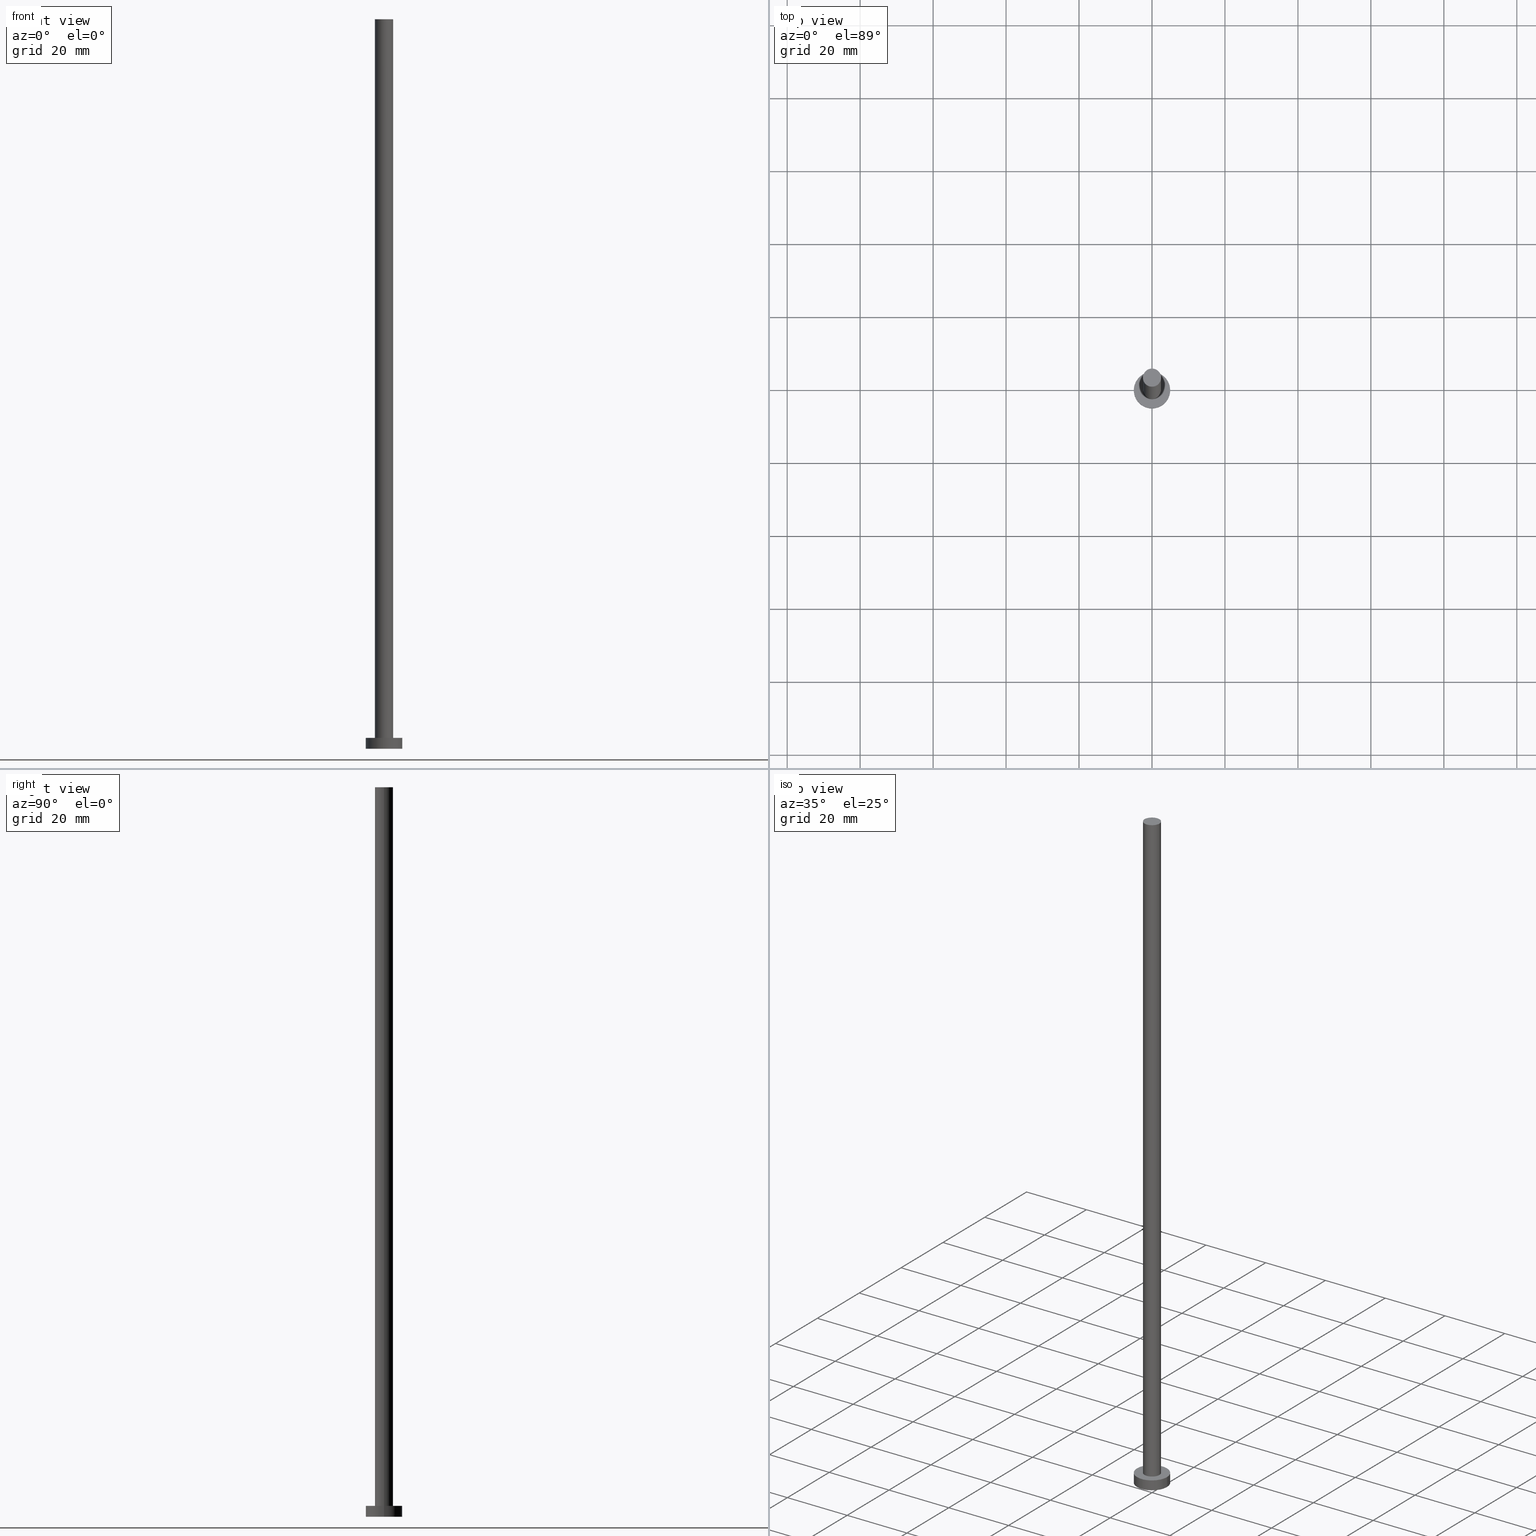
[diagram: canonical four-view strip — front | top / right | iso, engineering-drawing reading convention]
A machine part, canonical four-view strip (front | top / right | iso — engineering-drawing reading convention). The complete STEP part file that produces these views, byte-faithful:
ISO-10303-21;
HEADER;
FILE_DESCRIPTION (( 'STEP AP203' ),
    '1' );
FILE_NAME ('8b84.STEP',
    '2023-02-13T13:26:22',
    ( '' ),
    ( '' ),
    'SwSTEP 2.0',
    'SolidWorks 2019',
    '' );
FILE_SCHEMA (( 'CONFIG_CONTROL_DESIGN' ));
ENDSEC;

DATA;
#1 = DIRECTION ( 'NONE',  ( 0.000000000000000000, 0.000000000000000000, 1.000000000000000000 ) ) ;
#2 = CARTESIAN_POINT ( 'NONE',  ( 0.000000000000000000, 0.000000000000000000, 200.0000000000000000 ) ) ;
#3 = ORIENTED_EDGE ( 'NONE', *, *, #58, .F. ) ;
#4 = CC_DESIGN_PERSON_AND_ORGANIZATION_ASSIGNMENT ( #170, #156, ( #30 ) ) ;
#5 = EDGE_CURVE ( 'NONE', #71, #241, #124, .T. ) ;
#6 = PLANE ( 'NONE',  #17 ) ;
#7 = CARTESIAN_POINT ( 'NONE',  ( 0.000000000000000000, 0.000000000000000000, 0.000000000000000000 ) ) ;
#8 = FACE_OUTER_BOUND ( 'NONE', #15, .T. ) ;
#9 = PERSON_AND_ORGANIZATION ( #155, #232 ) ;
#10 = CIRCLE ( 'NONE', #78, 5.000000000000000000 ) ;
#11 = CARTESIAN_POINT ( 'NONE',  ( 5.000000000000000000, 6.123233995736766282E-16, 3.000000000000000000 ) ) ;
#12 = CIRCLE ( 'NONE', #203, 2.500000000000000000 ) ;
#13 = DATE_AND_TIME ( #186, #159 ) ;
#14 = DIRECTION ( 'NONE',  ( -0.000000000000000000, -0.000000000000000000, -1.000000000000000000 ) ) ;
#15 = EDGE_LOOP ( 'NONE', ( #123, #255, #179, #195 ) ) ;
#16 = EDGE_CURVE ( 'NONE', #71, #236, #93, .T. ) ;
#17 = AXIS2_PLACEMENT_3D ( 'NONE', #31, #48, #53 ) ;
#18 = VERTEX_POINT ( 'NONE', #153 ) ;
#19 = APPLICATION_CONTEXT ( 'configuration controlled 3d designs of mechanical parts and assemblies' ) ;
#20 = VERTEX_POINT ( 'NONE', #185 ) ;
#21 = ORIENTED_EDGE ( 'NONE', *, *, #5, .F. ) ;
#22 = PERSON_AND_ORGANIZATION ( #155, #232 ) ;
#23 = PRODUCT_RELATED_PRODUCT_CATEGORY ( 'detail', '', ( #250 ) ) ;
#24 = CARTESIAN_POINT ( 'NONE',  ( 2.500000000000000000, 3.061616997868383141E-16, 200.0000000000000000 ) ) ;
#25 = ORIENTED_EDGE ( 'NONE', *, *, #214, .T. ) ;
#26 = PERSON_AND_ORGANIZATION_ROLE ( 'classification_officer' ) ;
#27 = DIRECTION ( 'NONE',  ( 1.000000000000000000, 0.000000000000000000, 0.000000000000000000 ) ) ;
#28 = CALENDAR_DATE ( 2023, 13, 2 ) ;
#29 = CLOSED_SHELL ( 'NONE', ( #61, #148, #100, #230, #38, #37, #189 ) ) ;
#30 = PRODUCT_DEFINITION_FORMATION_WITH_SPECIFIED_SOURCE ( 'LIBOVOLN�', '', #250, .NOT_KNOWN. ) ;
#31 = CARTESIAN_POINT ( 'NONE',  ( 0.000000000000000000, 0.000000000000000000, 0.000000000000000000 ) ) ;
#32 = PERSON_AND_ORGANIZATION ( #155, #232 ) ;
#33 = CARTESIAN_POINT ( 'NONE',  ( 0.000000000000000000, 0.000000000000000000, 200.0000000000000000 ) ) ;
#34 = APPROVAL_DATE_TIME ( #206, #198 ) ;
#35 = CARTESIAN_POINT ( 'NONE',  ( 0.000000000000000000, 0.000000000000000000, 3.000000000000000000 ) ) ;
#36 = COORDINATED_UNIVERSAL_TIME_OFFSET ( 1, 0, .AHEAD. ) ;
#37 = ADVANCED_FACE ( 'NONE', ( #67 ), #223, .T. ) ;
#38 = ADVANCED_FACE ( 'NONE', ( #106 ), #6, .F. ) ;
#39 = FACE_OUTER_BOUND ( 'NONE', #81, .T. ) ;
#40 =( NAMED_UNIT ( * ) PLANE_ANGLE_UNIT ( ) SI_UNIT ( $, .RADIAN. ) );
#41 = CARTESIAN_POINT ( 'NONE',  ( 5.000000000000000000, 6.123233995736766282E-16, 3.000000000000000000 ) ) ;
#42 = ORIENTED_EDGE ( 'NONE', *, *, #214, .F. ) ;
#43 = ORIENTED_EDGE ( 'NONE', *, *, #158, .F. ) ;
#44 = DIRECTION ( 'NONE',  ( 1.000000000000000000, 0.000000000000000000, 0.000000000000000000 ) ) ;
#45 = AXIS2_PLACEMENT_3D ( 'NONE', #2, #201, #27 ) ;
#46 = VECTOR ( 'NONE', #14, 1000.000000000000000 ) ;
#47 = EDGE_LOOP ( 'NONE', ( #68, #25 ) ) ;
#48 = DIRECTION ( 'NONE',  ( 0.000000000000000000, 0.000000000000000000, 1.000000000000000000 ) ) ;
#49 = COORDINATED_UNIVERSAL_TIME_OFFSET ( 1, 0, .AHEAD. ) ;
#50 = EDGE_LOOP ( 'NONE', ( #150, #199 ) ) ;
#51 = DIRECTION ( 'NONE',  ( -0.000000000000000000, -0.000000000000000000, -1.000000000000000000 ) ) ;
#52 = DIRECTION ( 'NONE',  ( 0.000000000000000000, 0.000000000000000000, 1.000000000000000000 ) ) ;
#53 = DIRECTION ( 'NONE',  ( 1.000000000000000000, 0.000000000000000000, -0.000000000000000000 ) ) ;
#54 = MANIFOLD_SOLID_BREP ( 'P�idat vysunut�m3', #29 ) ;
#55 = APPROVAL_ROLE ( '' ) ;
#56 = DIRECTION ( 'NONE',  ( 1.000000000000000000, 0.000000000000000000, 0.000000000000000000 ) ) ;
#57 = CC_DESIGN_DATE_AND_TIME_ASSIGNMENT ( #13, #208, ( #62 ) ) ;
#58 = EDGE_CURVE ( 'NONE', #141, #18, #254, .T. ) ;
#59 = VECTOR ( 'NONE', #220, 1000.000000000000000 ) ;
#60 = DATE_AND_TIME ( #209, #147 ) ;
#61 = ADVANCED_FACE ( 'NONE', ( #168 ), #163, .T. ) ;
#62 = PRODUCT_DEFINITION ( 'NEZN�M�', '', #30, #226 ) ;
#63 = PERSON_AND_ORGANIZATION ( #155, #232 ) ;
#64 = CIRCLE ( 'NONE', #213, 2.500000000000000000 ) ;
#65 = VERTEX_POINT ( 'NONE', #126 ) ;
#66 = CC_DESIGN_PERSON_AND_ORGANIZATION_ASSIGNMENT ( #97, #128, ( #250 ) ) ;
#67 = FACE_OUTER_BOUND ( 'NONE', #212, .T. ) ;
#68 = ORIENTED_EDGE ( 'NONE', *, *, #138, .T. ) ;
#69 = CARTESIAN_POINT ( 'NONE',  ( 0.000000000000000000, 0.000000000000000000, 0.000000000000000000 ) ) ;
#70 = CARTESIAN_POINT ( 'NONE',  ( 0.000000000000000000, 0.000000000000000000, 200.0000000000000000 ) ) ;
#71 = VERTEX_POINT ( 'NONE', #77 ) ;
#72 =( LENGTH_UNIT ( ) NAMED_UNIT ( * ) SI_UNIT ( .MILLI., .METRE. ) );
#73 = DIRECTION ( 'NONE',  ( -0.000000000000000000, -0.000000000000000000, -1.000000000000000000 ) ) ;
#74 = CALENDAR_DATE ( 2023, 13, 2 ) ;
#75 = DIRECTION ( 'NONE',  ( -0.000000000000000000, -0.000000000000000000, -1.000000000000000000 ) ) ;
#76 = APPROVAL_DATE_TIME ( #244, #79 ) ;
#77 = CARTESIAN_POINT ( 'NONE',  ( -5.000000000000000000, 0.000000000000000000, 3.000000000000000000 ) ) ;
#78 = AXIS2_PLACEMENT_3D ( 'NONE', #90, #1, #44 ) ;
#79 = APPROVAL ( #224, 'NEUR�EN�' ) ;
#80 = CC_DESIGN_APPROVAL ( #198, ( #30 ) ) ;
#81 = EDGE_LOOP ( 'NONE', ( #85, #143 ) ) ;
#82 = VECTOR ( 'NONE', #184, 1000.000000000000000 ) ;
#83 = LOCAL_TIME ( 14, 26, 22.00000000000000000, #109 ) ;
#84 = EDGE_CURVE ( 'NONE', #127, #141, #176, .T. ) ;
#85 = ORIENTED_EDGE ( 'NONE', *, *, #5, .T. ) ;
#86 = DIRECTION ( 'NONE',  ( 0.000000000000000000, 0.000000000000000000, 1.000000000000000000 ) ) ;
#87 = AXIS2_PLACEMENT_3D ( 'NONE', #94, #190, #99 ) ;
#88 = ORIENTED_EDGE ( 'NONE', *, *, #58, .T. ) ;
#89 = DIRECTION ( 'NONE',  ( -1.000000000000000000, 0.000000000000000000, 0.000000000000000000 ) ) ;
#90 = CARTESIAN_POINT ( 'NONE',  ( 0.000000000000000000, 0.000000000000000000, 3.000000000000000000 ) ) ;
#91 = APPROVAL_ROLE ( '' ) ;
#92 = CYLINDRICAL_SURFACE ( 'NONE', #182, 5.000000000000000000 ) ;
#93 = LINE ( 'NONE', #240, #116 ) ;
#94 = CARTESIAN_POINT ( 'NONE',  ( 0.000000000000000000, 0.000000000000000000, 200.0000000000000000 ) ) ;
#95 = CALENDAR_DATE ( 2023, 13, 2 ) ;
#96 = CC_DESIGN_DATE_AND_TIME_ASSIGNMENT ( #129, #146, ( #194 ) ) ;
#97 = PERSON_AND_ORGANIZATION ( #155, #232 ) ;
#98 = ORIENTED_EDGE ( 'NONE', *, *, #207, .F. ) ;
#99 = DIRECTION ( 'NONE',  ( 1.000000000000000000, 0.000000000000000000, -0.000000000000000000 ) ) ;
#100 = ADVANCED_FACE ( 'NONE', ( #152 ), #92, .T. ) ;
#101 = APPROVAL_PERSON_ORGANIZATION ( #22, #79, #91 ) ;
#102 = ORIENTED_EDGE ( 'NONE', *, *, #158, .T. ) ;
#103 = CIRCLE ( 'NONE', #45, 2.500000000000000000 ) ;
#104 =( GEOMETRIC_REPRESENTATION_CONTEXT ( 3 ) GLOBAL_UNCERTAINTY_ASSIGNED_CONTEXT ( ( #160 ) ) GLOBAL_UNIT_ASSIGNED_CONTEXT ( ( #72, #40, #239 ) ) REPRESENTATION_CONTEXT ( 'NONE', 'WORKASPACE' ) );
#105 = CIRCLE ( 'NONE', #246, 5.000000000000000000 ) ;
#106 = FACE_OUTER_BOUND ( 'NONE', #50, .T. ) ;
#107 = ORIENTED_EDGE ( 'NONE', *, *, #218, .F. ) ;
#108 = CARTESIAN_POINT ( 'NONE',  ( -2.500000000000000000, 0.000000000000000000, 200.0000000000000000 ) ) ;
#109 = COORDINATED_UNIVERSAL_TIME_OFFSET ( 1, 0, .AHEAD. ) ;
#110 = PLANE ( 'NONE',  #87 ) ;
#111 = SHAPE_DEFINITION_REPRESENTATION ( #211, #139 ) ;
#112 = EDGE_CURVE ( 'NONE', #241, #71, #10, .T. ) ;
#113 = PERSON_AND_ORGANIZATION ( #155, #232 ) ;
#114 = AXIS2_PLACEMENT_3D ( 'NONE', #166, #145, #167 ) ;
#115 = LINE ( 'NONE', #11, #46 ) ;
#116 = VECTOR ( 'NONE', #75, 1000.000000000000000 ) ;
#117 = APPROVAL_STATUS ( 'not_yet_approved' ) ;
#118 = CC_DESIGN_PERSON_AND_ORGANIZATION_ASSIGNMENT ( #113, #187, ( #30 ) ) ;
#119 = CARTESIAN_POINT ( 'NONE',  ( 0.000000000000000000, 0.000000000000000000, 3.000000000000000000 ) ) ;
#120 = EDGE_LOOP ( 'NONE', ( #107, #21, #164, #219 ) ) ;
#121 = CARTESIAN_POINT ( 'NONE',  ( 0.000000000000000000, 0.000000000000000000, 0.000000000000000000 ) ) ;
#122 = CARTESIAN_POINT ( 'NONE',  ( 0.000000000000000000, 0.000000000000000000, 3.000000000000000000 ) ) ;
#123 = ORIENTED_EDGE ( 'NONE', *, *, #112, .F. ) ;
#124 = CIRCLE ( 'NONE', #175, 5.000000000000000000 ) ;
#125 = LINE ( 'NONE', #108, #82 ) ;
#126 = CARTESIAN_POINT ( 'NONE',  ( 5.000000000000000000, 6.123233995736766282E-16, 0.000000000000000000 ) ) ;
#127 = VERTEX_POINT ( 'NONE', #178 ) ;
#128 = PERSON_AND_ORGANIZATION_ROLE ( 'design_owner' ) ;
#129 = DATE_AND_TIME ( #95, #83 ) ;
#130 = DIRECTION ( 'NONE',  ( 1.000000000000000000, 0.000000000000000000, 0.000000000000000000 ) ) ;
#131 = COORDINATED_UNIVERSAL_TIME_OFFSET ( 1, 0, .AHEAD. ) ;
#132 = CC_DESIGN_PERSON_AND_ORGANIZATION_ASSIGNMENT ( #63, #142, ( #62 ) ) ;
#133 = COORDINATED_UNIVERSAL_TIME_OFFSET ( 1, 0, .AHEAD. ) ;
#134 = AXIS2_PLACEMENT_3D ( 'NONE', #238, #51, #227 ) ;
#135 = FACE_BOUND ( 'NONE', #215, .T. ) ;
#136 = AXIS2_PLACEMENT_3D ( 'NONE', #69, #222, #237 ) ;
#137 = CC_DESIGN_APPROVAL ( #79, ( #194 ) ) ;
#138 = EDGE_CURVE ( 'NONE', #20, #127, #103, .T. ) ;
#139 = ADVANCED_BREP_SHAPE_REPRESENTATION ( '8b84', ( #54, #136 ), #104 ) ;
#140 = AXIS2_PLACEMENT_3D ( 'NONE', #7, #52, #130 ) ;
#141 = VERTEX_POINT ( 'NONE', #149 ) ;
#142 = PERSON_AND_ORGANIZATION_ROLE ( 'creator' ) ;
#143 = ORIENTED_EDGE ( 'NONE', *, *, #112, .T. ) ;
#144 = DIRECTION ( 'NONE',  ( -0.000000000000000000, -0.000000000000000000, -1.000000000000000000 ) ) ;
#145 = DIRECTION ( 'NONE',  ( 0.000000000000000000, 0.000000000000000000, 1.000000000000000000 ) ) ;
#146 = DATE_TIME_ROLE ( 'classification_date' ) ;
#147 = LOCAL_TIME ( 14, 26, 22.00000000000000000, #36 ) ;
#148 = ADVANCED_FACE ( 'NONE', ( #8 ), #225, .T. ) ;
#149 = CARTESIAN_POINT ( 'NONE',  ( 2.500000000000000000, 3.061616997868383141E-16, 3.000000000000000000 ) ) ;
#150 = ORIENTED_EDGE ( 'NONE', *, *, #177, .F. ) ;
#151 = SECURITY_CLASSIFICATION_LEVEL ( 'unclassified' ) ;
#152 = FACE_OUTER_BOUND ( 'NONE', #120, .T. ) ;
#153 = CARTESIAN_POINT ( 'NONE',  ( -2.500000000000000000, 0.000000000000000000, 3.000000000000000000 ) ) ;
#154 = DIRECTION ( 'NONE',  ( 0.000000000000000000, 0.000000000000000000, 1.000000000000000000 ) ) ;
#155 = PERSON ( 'NEUR�EN�', 'NEUR�EN�', 'NEUR�EN�', ('NEUR�EN�'), ('NEUR�EN�'), ('NEUR�EN�') ) ;
#156 = PERSON_AND_ORGANIZATION_ROLE ( 'design_supplier' ) ;
#157 = DIRECTION ( 'NONE',  ( 0.000000000000000000, 0.000000000000000000, 1.000000000000000000 ) ) ;
#158 = EDGE_CURVE ( 'NONE', #20, #18, #125, .T. ) ;
#159 = LOCAL_TIME ( 14, 26, 22.00000000000000000, #131 ) ;
#160 = UNCERTAINTY_MEASURE_WITH_UNIT (LENGTH_MEASURE( 1.000000000000000082E-05 ), #72, 'distance_accuracy_value', 'NONE');
#161 = PLANE ( 'NONE',  #228 ) ;
#162 = APPROVAL ( #117, 'NEUR�EN�' ) ;
#163 = CYLINDRICAL_SURFACE ( 'NONE', #231, 2.500000000000000000 ) ;
#164 = ORIENTED_EDGE ( 'NONE', *, *, #16, .T. ) ;
#165 = AXIS2_PLACEMENT_3D ( 'NONE', #70, #144, #243 ) ;
#166 = CARTESIAN_POINT ( 'NONE',  ( 0.000000000000000000, 0.000000000000000000, 3.000000000000000000 ) ) ;
#167 = DIRECTION ( 'NONE',  ( 1.000000000000000000, 0.000000000000000000, 0.000000000000000000 ) ) ;
#168 = FACE_OUTER_BOUND ( 'NONE', #217, .T. ) ;
#169 = DIRECTION ( 'NONE',  ( 0.000000000000000000, 0.000000000000000000, 1.000000000000000000 ) ) ;
#170 = PERSON_AND_ORGANIZATION ( #155, #232 ) ;
#171 = DIRECTION ( 'NONE',  ( 1.000000000000000000, 0.000000000000000000, 0.000000000000000000 ) ) ;
#172 = CC_DESIGN_PERSON_AND_ORGANIZATION_ASSIGNMENT ( #32, #26, ( #194 ) ) ;
#173 = CC_DESIGN_APPROVAL ( #162, ( #62 ) ) ;
#174 = APPLICATION_PROTOCOL_DEFINITION ( 'international standard', 'config_control_design', 1994, #253 ) ;
#175 = AXIS2_PLACEMENT_3D ( 'NONE', #122, #86, #205 ) ;
#176 = LINE ( 'NONE', #24, #59 ) ;
#177 = EDGE_CURVE ( 'NONE', #236, #65, #252, .T. ) ;
#178 = CARTESIAN_POINT ( 'NONE',  ( 2.500000000000000000, 3.061616997868383141E-16, 200.0000000000000000 ) ) ;
#179 = ORIENTED_EDGE ( 'NONE', *, *, #251, .T. ) ;
#180 = DIRECTION ( 'NONE',  ( 1.000000000000000000, 0.000000000000000000, 0.000000000000000000 ) ) ;
#181 = ORIENTED_EDGE ( 'NONE', *, *, #84, .F. ) ;
#182 = AXIS2_PLACEMENT_3D ( 'NONE', #242, #73, #89 ) ;
#183 = PERSON_AND_ORGANIZATION ( #155, #232 ) ;
#184 = DIRECTION ( 'NONE',  ( -0.000000000000000000, -0.000000000000000000, -1.000000000000000000 ) ) ;
#185 = CARTESIAN_POINT ( 'NONE',  ( -2.500000000000000000, 0.000000000000000000, 200.0000000000000000 ) ) ;
#186 = CALENDAR_DATE ( 2023, 13, 2 ) ;
#187 = PERSON_AND_ORGANIZATION_ROLE ( 'creator' ) ;
#188 = APPROVAL_PERSON_ORGANIZATION ( #183, #162, #210 ) ;
#189 = ADVANCED_FACE ( 'NONE', ( #202 ), #110, .T. ) ;
#190 = DIRECTION ( 'NONE',  ( 0.000000000000000000, 0.000000000000000000, 1.000000000000000000 ) ) ;
#191 = APPROVAL_DATE_TIME ( #60, #162 ) ;
#192 = CARTESIAN_POINT ( 'NONE',  ( 0.000000000000000000, 0.000000000000000000, 200.0000000000000000 ) ) ;
#193 = DIRECTION ( 'NONE',  ( 1.000000000000000000, 0.000000000000000000, -0.000000000000000000 ) ) ;
#194 = SECURITY_CLASSIFICATION ( '', '', #151 ) ;
#195 = ORIENTED_EDGE ( 'NONE', *, *, #16, .F. ) ;
#196 = MECHANICAL_CONTEXT ( 'NONE', #253, 'mechanical' ) ;
#197 = ORIENTED_EDGE ( 'NONE', *, *, #84, .T. ) ;
#198 = APPROVAL ( #229, 'NEUR�EN�' ) ;
#199 = ORIENTED_EDGE ( 'NONE', *, *, #251, .F. ) ;
#200 = DIRECTION ( 'NONE',  ( -1.000000000000000000, 0.000000000000000000, 0.000000000000000000 ) ) ;
#201 = DIRECTION ( 'NONE',  ( 0.000000000000000000, 0.000000000000000000, 1.000000000000000000 ) ) ;
#202 = FACE_OUTER_BOUND ( 'NONE', #47, .T. ) ;
#203 = AXIS2_PLACEMENT_3D ( 'NONE', #192, #169, #56 ) ;
#204 = LOCAL_TIME ( 14, 26, 22.00000000000000000, #133 ) ;
#205 = DIRECTION ( 'NONE',  ( 1.000000000000000000, 0.000000000000000000, 0.000000000000000000 ) ) ;
#206 = DATE_AND_TIME ( #74, #204 ) ;
#207 = EDGE_CURVE ( 'NONE', #18, #141, #64, .T. ) ;
#208 = DATE_TIME_ROLE ( 'creation_date' ) ;
#209 = CALENDAR_DATE ( 2023, 13, 2 ) ;
#210 = APPROVAL_ROLE ( '' ) ;
#211 = PRODUCT_DEFINITION_SHAPE ( 'NONE', 'NONE',  #62 ) ;
#212 = EDGE_LOOP ( 'NONE', ( #181, #234, #102, #221 ) ) ;
#213 = AXIS2_PLACEMENT_3D ( 'NONE', #35, #157, #171 ) ;
#214 = EDGE_CURVE ( 'NONE', #127, #20, #12, .T. ) ;
#215 = EDGE_LOOP ( 'NONE', ( #98, #3 ) ) ;
#216 = CARTESIAN_POINT ( 'NONE',  ( -5.000000000000000000, 0.000000000000000000, 0.000000000000000000 ) ) ;
#217 = EDGE_LOOP ( 'NONE', ( #42, #197, #88, #43 ) ) ;
#218 = EDGE_CURVE ( 'NONE', #241, #65, #115, .T. ) ;
#219 = ORIENTED_EDGE ( 'NONE', *, *, #177, .T. ) ;
#220 = DIRECTION ( 'NONE',  ( -0.000000000000000000, -0.000000000000000000, -1.000000000000000000 ) ) ;
#221 = ORIENTED_EDGE ( 'NONE', *, *, #207, .T. ) ;
#222 = DIRECTION ( 'NONE',  ( 0.000000000000000000, 0.000000000000000000, 1.000000000000000000 ) ) ;
#223 = CYLINDRICAL_SURFACE ( 'NONE', #165, 2.500000000000000000 ) ;
#224 = APPROVAL_STATUS ( 'not_yet_approved' ) ;
#225 = CYLINDRICAL_SURFACE ( 'NONE', #134, 5.000000000000000000 ) ;
#226 = DESIGN_CONTEXT ( 'detailed design', #19, 'design' ) ;
#227 = DIRECTION ( 'NONE',  ( -1.000000000000000000, 0.000000000000000000, 0.000000000000000000 ) ) ;
#228 = AXIS2_PLACEMENT_3D ( 'NONE', #119, #233, #193 ) ;
#229 = APPROVAL_STATUS ( 'not_yet_approved' ) ;
#230 = ADVANCED_FACE ( 'NONE', ( #135, #39 ), #161, .T. ) ;
#231 = AXIS2_PLACEMENT_3D ( 'NONE', #33, #245, #200 ) ;
#232 = ORGANIZATION ( 'NEUR�EN�', 'NEUR�EN�', '' ) ;
#233 = DIRECTION ( 'NONE',  ( 0.000000000000000000, 0.000000000000000000, 1.000000000000000000 ) ) ;
#234 = ORIENTED_EDGE ( 'NONE', *, *, #138, .F. ) ;
#235 = LOCAL_TIME ( 14, 26, 22.00000000000000000, #49 ) ;
#236 = VERTEX_POINT ( 'NONE', #216 ) ;
#237 = DIRECTION ( 'NONE',  ( 1.000000000000000000, 0.000000000000000000, 0.000000000000000000 ) ) ;
#238 = CARTESIAN_POINT ( 'NONE',  ( 0.000000000000000000, 0.000000000000000000, 3.000000000000000000 ) ) ;
#239 =( NAMED_UNIT ( * ) SI_UNIT ( $, .STERADIAN. ) SOLID_ANGLE_UNIT ( ) );
#240 = CARTESIAN_POINT ( 'NONE',  ( -5.000000000000000000, 0.000000000000000000, 3.000000000000000000 ) ) ;
#241 = VERTEX_POINT ( 'NONE', #41 ) ;
#242 = CARTESIAN_POINT ( 'NONE',  ( 0.000000000000000000, 0.000000000000000000, 3.000000000000000000 ) ) ;
#243 = DIRECTION ( 'NONE',  ( -1.000000000000000000, 0.000000000000000000, 0.000000000000000000 ) ) ;
#244 = DATE_AND_TIME ( #28, #235 ) ;
#245 = DIRECTION ( 'NONE',  ( -0.000000000000000000, -0.000000000000000000, -1.000000000000000000 ) ) ;
#246 = AXIS2_PLACEMENT_3D ( 'NONE', #121, #154, #180 ) ;
#247 = CC_DESIGN_SECURITY_CLASSIFICATION ( #194, ( #30 ) ) ;
#248 = APPLICATION_PROTOCOL_DEFINITION ( 'international standard', 'config_control_design', 1994, #19 ) ;
#249 = APPROVAL_PERSON_ORGANIZATION ( #9, #198, #55 ) ;
#250 = PRODUCT ( '8b84', '8b84', '', ( #196 ) ) ;
#251 = EDGE_CURVE ( 'NONE', #65, #236, #105, .T. ) ;
#252 = CIRCLE ( 'NONE', #140, 5.000000000000000000 ) ;
#253 = APPLICATION_CONTEXT ( 'configuration controlled 3d designs of mechanical parts and assemblies' ) ;
#254 = CIRCLE ( 'NONE', #114, 2.500000000000000000 ) ;
#255 = ORIENTED_EDGE ( 'NONE', *, *, #218, .T. ) ;
ENDSEC;
END-ISO-10303-21;
